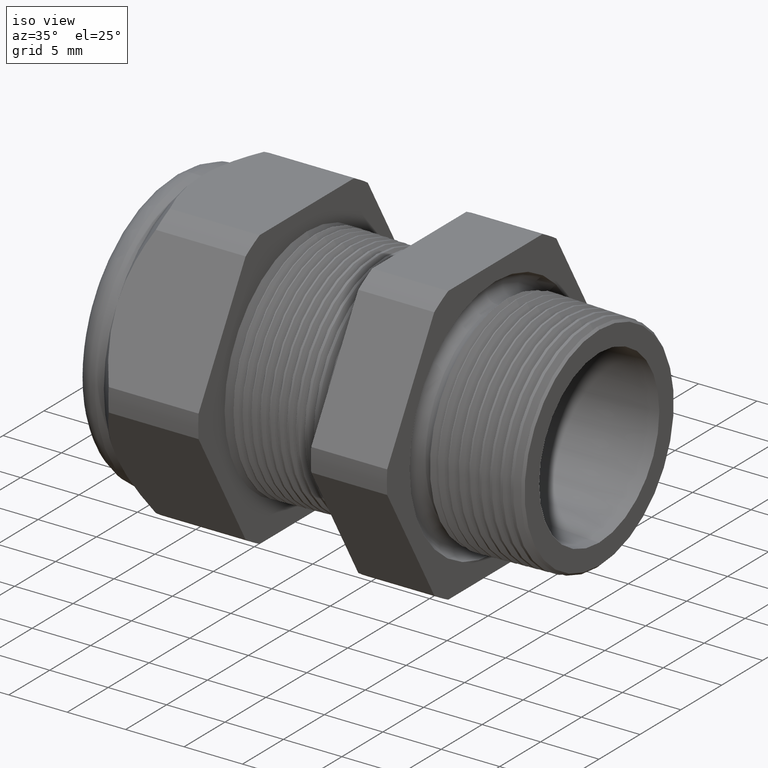
[diagram: clean part render]
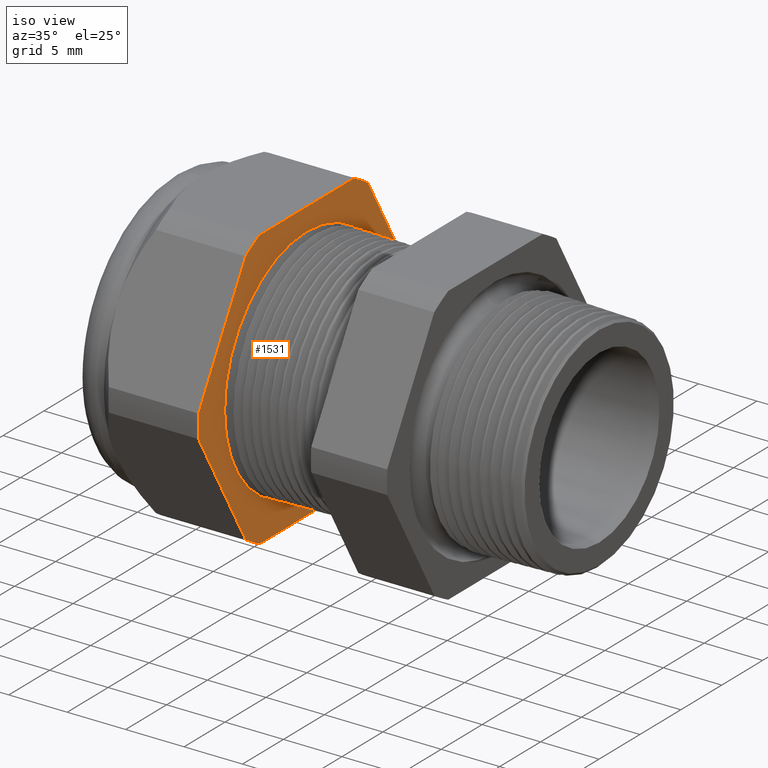
[diagram: same view with one face highlighted and labeled with its STEP entity id]
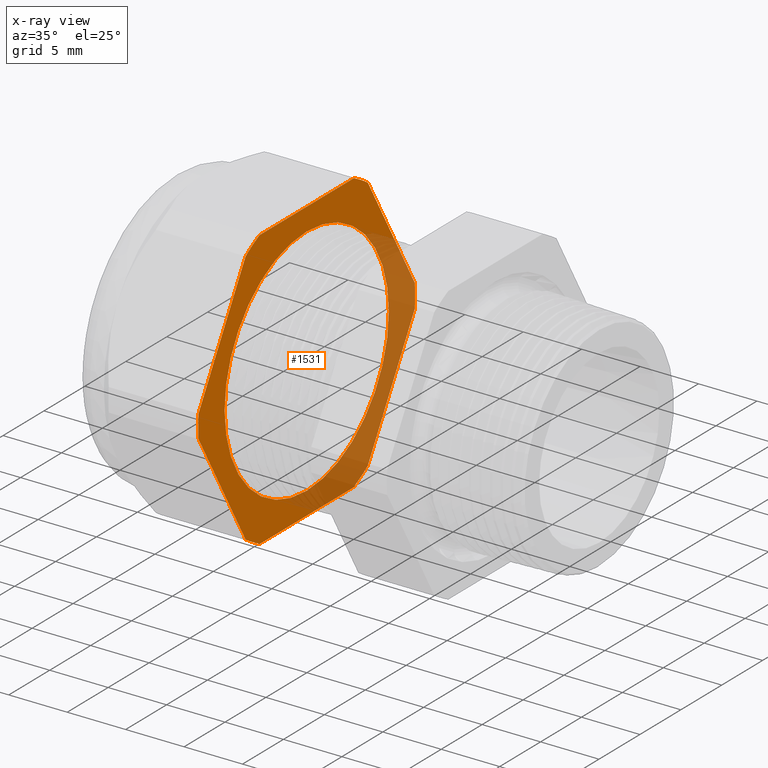
[diagram: x-ray of the same camera — body ghosted, the highlighted face saturated]
A machine part, iso view. The second image highlights one B-rep face of the part: STEP entity #1531.
The next image is the same camera in x-ray: the body ghosted, the highlighted face saturated — about 35% of this face is hidden behind the body in this view.
In plain terms, the highlighted planar face has unit normal (1, 0, 0).
Its self-contained STEP definition (entity closure, byte-faithful):
#38 = DIRECTION ( 'NONE',  ( 0.0000000000000000000, 0.0000000000000000000, -1.000000000000000000 ) ) ;
#107 = CARTESIAN_POINT ( 'NONE',  ( -0.9454330708661420300, 0.0000000000000000000, 0.0000000000000000000 ) ) ;
#108 = DIRECTION ( 'NONE',  ( 1.000000000000000000, 0.0000000000000000000, 0.0000000000000000000 ) ) ;
#1140 = EDGE_CURVE ( 'NONE', #1159, #1219, #4072, .T. ) ;
#1159 = VERTEX_POINT ( 'NONE', #4078 ) ;
#1185 = VERTEX_POINT ( 'NONE', #4158 ) ;
#1187 = EDGE_CURVE ( 'NONE', #1202, #1185, #4156, .T. ) ;
#1191 = EDGE_CURVE ( 'NONE', #1205, #1216, #4145, .T. ) ;
#1202 = VERTEX_POINT ( 'NONE', #4231 ) ;
#1205 = VERTEX_POINT ( 'NONE', #4226 ) ;
#1207 = EDGE_CURVE ( 'NONE', #1219, #1205, #4225, .T. ) ;
#1216 = VERTEX_POINT ( 'NONE', #4205 ) ;
#1219 = VERTEX_POINT ( 'NONE', #4200 ) ;
#1221 = VERTEX_POINT ( 'NONE', #4258 ) ;
#1223 = EDGE_CURVE ( 'NONE', #1236, #1221, #4257, .T. ) ;
#1236 = VERTEX_POINT ( 'NONE', #4289 ) ;
#1238 = EDGE_CURVE ( 'NONE', #1252, #1236, #4287, .T. ) ;
#1252 = VERTEX_POINT ( 'NONE', #4314 ) ;
#1254 = EDGE_CURVE ( 'NONE', #1185, #1252, #4313, .T. ) ;
#1258 = EDGE_CURVE ( 'NONE', #1216, #1202, #4307, .T. ) ;
#1268 = EDGE_CURVE ( 'NONE', #1283, #1159, #4351, .T. ) ;
#1272 = VERTEX_POINT ( 'NONE', #4330 ) ;
#1274 = EDGE_CURVE ( 'NONE', #1286, #1272, #4329, .T. ) ;
#1283 = VERTEX_POINT ( 'NONE', #4369 ) ;
#1286 = VERTEX_POINT ( 'NONE', #4364 ) ;
#1288 = EDGE_CURVE ( 'NONE', #1221, #1286, #4363, .T. ) ;
#1343 = EDGE_CURVE ( 'NONE', #1272, #1283, #4484, .T. ) ;
#1519 = ORIENTED_EDGE ( 'NONE', *, *, #1254, .T. ) ;
#1520 = ORIENTED_EDGE ( 'NONE', *, *, #1238, .T. ) ;
#1521 = ORIENTED_EDGE ( 'NONE', *, *, #1223, .T. ) ;
#1523 = ORIENTED_EDGE ( 'NONE', *, *, #1288, .T. ) ;
#1524 = ORIENTED_EDGE ( 'NONE', *, *, #1274, .T. ) ;
#1525 = ORIENTED_EDGE ( 'NONE', *, *, #1343, .T. ) ;
#1531 = ADVANCED_FACE ( 'NONE', ( #4800, #4799 ), #4798, .T. ) ;
#1532 = EDGE_LOOP ( 'NONE', ( #1533, #1535 ) ) ;
#1533 = ORIENTED_EDGE ( 'NONE', *, *, #1534, .F. ) ;
#1534 = EDGE_CURVE ( 'NONE', #2719, #3161, #4291, .T. ) ;
#1535 = ORIENTED_EDGE ( 'NONE', *, *, #3032, .F. ) ;
#1536 = EDGE_LOOP ( 'NONE', ( #1537, #1538, #1539, #1540, #1541, #1542, #1519, #1520, #1521, #1523, #1524, #1525 ) ) ;
#1537 = ORIENTED_EDGE ( 'NONE', *, *, #1268, .T. ) ;
#1538 = ORIENTED_EDGE ( 'NONE', *, *, #1140, .T. ) ;
#1539 = ORIENTED_EDGE ( 'NONE', *, *, #1207, .T. ) ;
#1540 = ORIENTED_EDGE ( 'NONE', *, *, #1191, .T. ) ;
#1541 = ORIENTED_EDGE ( 'NONE', *, *, #1258, .T. ) ;
#1542 = ORIENTED_EDGE ( 'NONE', *, *, #1187, .T. ) ;
#2719 = VERTEX_POINT ( 'NONE', #5246 ) ;
#3032 = EDGE_CURVE ( 'NONE', #3161, #2719, #5290, .T. ) ;
#3161 = VERTEX_POINT ( 'NONE', #5283 ) ;
#4068 = DIRECTION ( 'NONE',  ( 0.0000000000000000000, 0.0000000000000000000, -1.000000000000000000 ) ) ;
#4069 = DIRECTION ( 'NONE',  ( 1.000000000000000000, 0.0000000000000000000, 0.0000000000000000000 ) ) ;
#4070 = CARTESIAN_POINT ( 'NONE',  ( -0.9454330708661420300, 0.0000000000000000000, 0.0000000000000000000 ) ) ;
#4071 = AXIS2_PLACEMENT_3D ( 'NONE', #4070, #4069, #4068 ) ;
#4072 = CIRCLE ( 'NONE', #4071, 0.5217000000000000500 ) ;
#4078 = CARTESIAN_POINT ( 'NONE',  ( -0.9454330708661420300, 0.5202473208008777700, -0.03890520787129524800 ) ) ;
#4141 = DIRECTION ( 'NONE',  ( 0.0000000000000000000, 0.0000000000000000000, -1.000000000000000000 ) ) ;
#4142 = DIRECTION ( 'NONE',  ( 1.000000000000000000, 0.0000000000000000000, 0.0000000000000000000 ) ) ;
#4143 = CARTESIAN_POINT ( 'NONE',  ( -0.9454330708661420300, 0.0000000000000000000, 0.0000000000000000000 ) ) ;
#4144 = AXIS2_PLACEMENT_3D ( 'NONE', #4143, #4142, #4141 ) ;
#4145 = CIRCLE ( 'NONE', #4144, 0.5217000000000000500 ) ;
#4152 = DIRECTION ( 'NONE',  ( 0.0000000000000000000, 0.0000000000000000000, -1.000000000000000000 ) ) ;
#4153 = DIRECTION ( 'NONE',  ( 1.000000000000000000, 0.0000000000000000000, 0.0000000000000000000 ) ) ;
#4154 = CARTESIAN_POINT ( 'NONE',  ( -0.9454330708661420300, 0.0000000000000000000, 0.0000000000000000000 ) ) ;
#4155 = AXIS2_PLACEMENT_3D ( 'NONE', #4154, #4153, #4152 ) ;
#4156 = CIRCLE ( 'NONE', #4155, 0.5217000000000000500 ) ;
#4158 = CARTESIAN_POINT ( 'NONE',  ( -0.9454330708661420300, -0.2938165587564948700, 0.4310947921287048800 ) ) ;
#4200 = CARTESIAN_POINT ( 'NONE',  ( -0.9454330708661420300, 0.5202473208008776600, 0.03890520787129518600 ) ) ;
#4205 = CARTESIAN_POINT ( 'NONE',  ( -0.9454330708661420300, 0.2264307620443832800, 0.4699999999999999200 ) ) ;
#4222 = DIRECTION ( 'NONE',  ( 0.0000000000000000000, -0.4999999999999998300, 0.8660254037844386000 ) ) ;
#4223 = VECTOR ( 'NONE', #4222, 39.37007874015748900 ) ;
#4224 = CARTESIAN_POINT ( 'NONE',  ( -0.9454330708661420300, 0.5057819397786861300, 0.06395998275257334900 ) ) ;
#4225 = LINE ( 'NONE', #4224, #4223 ) ;
#4226 = CARTESIAN_POINT ( 'NONE',  ( -0.9454330708661420300, 0.2938165587564948700, 0.4310947921287048800 ) ) ;
#4231 = CARTESIAN_POINT ( 'NONE',  ( -0.9454330708661420300, -0.2264307620443835600, 0.4699999999999997500 ) ) ;
#4254 = DIRECTION ( 'NONE',  ( 0.0000000000000000000, 0.5000000000000001100, -0.8660254037844384900 ) ) ;
#4255 = VECTOR ( 'NONE', #4254, 39.37007874015748900 ) ;
#4256 = CARTESIAN_POINT ( 'NONE',  ( -0.9454330708661420300, -0.3082819397786861200, -0.4060400172474268900 ) ) ;
#4257 = LINE ( 'NONE', #4256, #4255 ) ;
#4258 = CARTESIAN_POINT ( 'NONE',  ( -0.9454330708661420300, -0.2938165587564942600, -0.4310947921287053300 ) ) ;
#4283 = DIRECTION ( 'NONE',  ( 0.0000000000000000000, 0.0000000000000000000, -1.000000000000000000 ) ) ;
#4284 = DIRECTION ( 'NONE',  ( 1.000000000000000000, 0.0000000000000000000, 0.0000000000000000000 ) ) ;
#4285 = CARTESIAN_POINT ( 'NONE',  ( -0.9454330708661420300, 0.0000000000000000000, 0.0000000000000000000 ) ) ;
#4286 = AXIS2_PLACEMENT_3D ( 'NONE', #4285, #4284, #4283 ) ;
#4287 = CIRCLE ( 'NONE', #4286, 0.5217000000000000500 ) ;
#4289 = CARTESIAN_POINT ( 'NONE',  ( -0.9454330708661420300, -0.5202473208008777700, -0.03890520787129494300 ) ) ;
#4291 = CIRCLE ( 'NONE', #4537, 0.3950000000000000200 ) ;
#4300 = DIRECTION ( 'NONE',  ( 0.0000000000000000000, -1.000000000000000000, 0.0000000000000000000 ) ) ;
#4301 = VECTOR ( 'NONE', #4300, 39.37007874015748100 ) ;
#4302 = CARTESIAN_POINT ( 'NONE',  ( -0.9454330708661420300, 0.3950000000000000200, 0.4699999999999999200 ) ) ;
#4307 = LINE ( 'NONE', #4302, #4301 ) ;
#4310 = DIRECTION ( 'NONE',  ( 0.0000000000000000000, -0.4999999999999997200, -0.8660254037844388200 ) ) ;
#4311 = VECTOR ( 'NONE', #4310, 39.37007874015748100 ) ;
#4312 = CARTESIAN_POINT ( 'NONE',  ( -0.9454330708661420300, -0.3082819397786865100, 0.4060400172474265000 ) ) ;
#4313 = LINE ( 'NONE', #4312, #4311 ) ;
#4314 = CARTESIAN_POINT ( 'NONE',  ( -0.9454330708661420300, -0.5202473208008777700, 0.03890520787129464500 ) ) ;
#4326 = DIRECTION ( 'NONE',  ( 0.0000000000000000000, 1.000000000000000000, 0.0000000000000000000 ) ) ;
#4327 = VECTOR ( 'NONE', #4326, 39.37007874015748100 ) ;
#4328 = CARTESIAN_POINT ( 'NONE',  ( -0.9454330708661420300, 0.3950000000000000200, -0.4700000000000000300 ) ) ;
#4329 = LINE ( 'NONE', #4328, #4327 ) ;
#4330 = CARTESIAN_POINT ( 'NONE',  ( -0.9454330708661420300, 0.2264307620443831200, -0.4700000000000000300 ) ) ;
#4342 = DIRECTION ( 'NONE',  ( 0.0000000000000000000, 0.5000000000000000000, 0.8660254037844386000 ) ) ;
#4343 = VECTOR ( 'NONE', #4342, 39.37007874015748900 ) ;
#4344 = CARTESIAN_POINT ( 'NONE',  ( -0.9454330708661420300, 0.5057819397786863500, -0.06395998275257344700 ) ) ;
#4351 = LINE ( 'NONE', #4344, #4343 ) ;
#4359 = DIRECTION ( 'NONE',  ( 0.0000000000000000000, 0.0000000000000000000, -1.000000000000000000 ) ) ;
#4360 = DIRECTION ( 'NONE',  ( 1.000000000000000000, 0.0000000000000000000, 0.0000000000000000000 ) ) ;
#4361 = CARTESIAN_POINT ( 'NONE',  ( -0.9454330708661420300, 0.0000000000000000000, 0.0000000000000000000 ) ) ;
#4362 = AXIS2_PLACEMENT_3D ( 'NONE', #4361, #4360, #4359 ) ;
#4363 = CIRCLE ( 'NONE', #4362, 0.5217000000000000500 ) ;
#4364 = CARTESIAN_POINT ( 'NONE',  ( -0.9454330708661420300, -0.2264307620443830900, -0.4700000000000000300 ) ) ;
#4369 = CARTESIAN_POINT ( 'NONE',  ( -0.9454330708661420300, 0.2938165587564948700, -0.4310947921287048800 ) ) ;
#4480 = DIRECTION ( 'NONE',  ( 0.0000000000000000000, 0.0000000000000000000, -1.000000000000000000 ) ) ;
#4481 = DIRECTION ( 'NONE',  ( 1.000000000000000000, 0.0000000000000000000, 0.0000000000000000000 ) ) ;
#4482 = CARTESIAN_POINT ( 'NONE',  ( -0.9454330708661420300, 0.0000000000000000000, 0.0000000000000000000 ) ) ;
#4483 = AXIS2_PLACEMENT_3D ( 'NONE', #4482, #4481, #4480 ) ;
#4484 = CIRCLE ( 'NONE', #4483, 0.5217000000000000500 ) ;
#4537 = AXIS2_PLACEMENT_3D ( 'NONE', #107, #108, #38 ) ;
#4794 = DIRECTION ( 'NONE',  ( 0.0000000000000000000, 0.0000000000000000000, -1.000000000000000000 ) ) ;
#4795 = DIRECTION ( 'NONE',  ( 1.000000000000000000, 0.0000000000000000000, 0.0000000000000000000 ) ) ;
#4796 = CARTESIAN_POINT ( 'NONE',  ( -0.9454330708661420300, 0.3950000000000000200, 0.0000000000000000000 ) ) ;
#4797 = AXIS2_PLACEMENT_3D ( 'NONE', #4796, #4795, #4794 ) ;
#4798 = PLANE ( 'NONE',  #4797 ) ;
#4799 = FACE_OUTER_BOUND ( 'NONE', #1536, .T. ) ;
#4800 = FACE_BOUND ( 'NONE', #1532, .T. ) ;
#5245 = CARTESIAN_POINT ( 'NONE',  ( -0.9454330708661420300, 0.0000000000000000000, 0.0000000000000000000 ) ) ;
#5246 = CARTESIAN_POINT ( 'NONE',  ( -0.9454330708661420300, 0.0000000000000000000, 0.3950000000000000200 ) ) ;
#5283 = CARTESIAN_POINT ( 'NONE',  ( -0.9454330708661420300, 4.837354856632045600E-017, -0.3950000000000000200 ) ) ;
#5287 = DIRECTION ( 'NONE',  ( 0.0000000000000000000, 0.0000000000000000000, -1.000000000000000000 ) ) ;
#5288 = DIRECTION ( 'NONE',  ( 1.000000000000000000, 0.0000000000000000000, 0.0000000000000000000 ) ) ;
#5289 = AXIS2_PLACEMENT_3D ( 'NONE', #5245, #5288, #5287 ) ;
#5290 = CIRCLE ( 'NONE', #5289, 0.3950000000000000200 ) ;